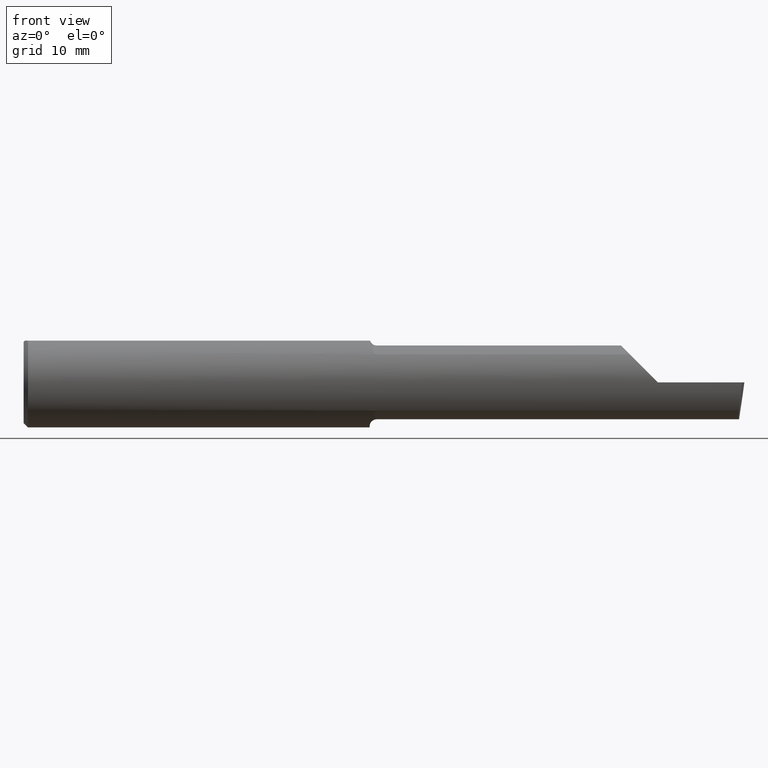
[diagram: clean part render]
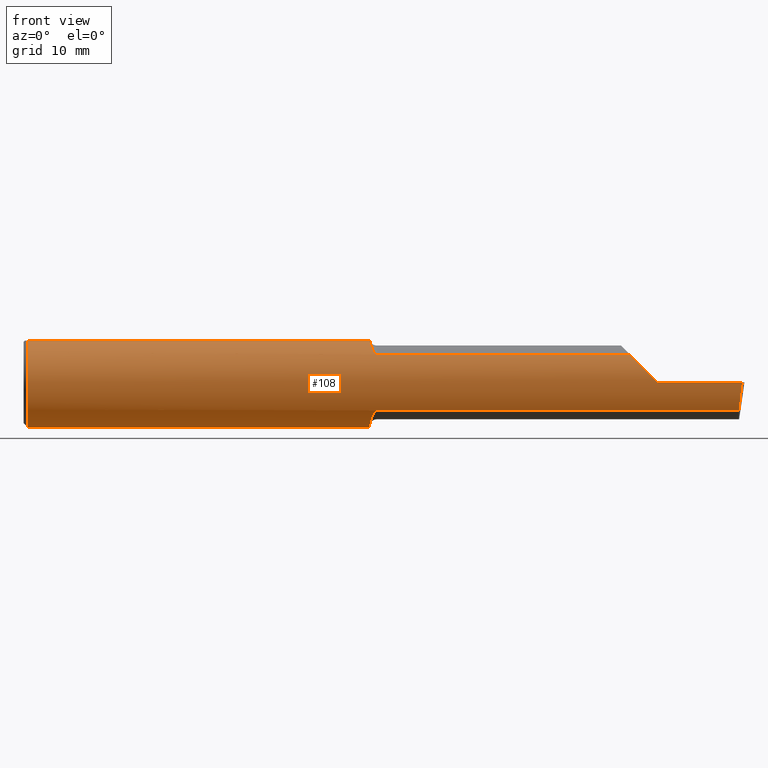
[diagram: same view with one face highlighted and labeled with its STEP entity id]
A machine part, front view. The second image highlights one B-rep face of the part: STEP entity #108.
In plain terms, the highlighted cylindrical surface (partial cylindrical patch) has radius 3.9649 mm, axis along (-1, -0, -0).
Its self-contained STEP definition (entity closure, byte-faithful):
#4 = LINE ( 'NONE', #294, #46 ) ;
#6 = DIRECTION ( 'NONE',  ( 0.000000000000000000, 0.000000000000000000, 1.000000000000000000 ) ) ;
#21 = ORIENTED_EDGE ( 'NONE', *, *, #365, .F. ) ;
#29 = CARTESIAN_POINT ( 'NONE',  ( 2.200000000000000178, -0.1560999999999999888, 9.797174393178826150E-17 ) ) ;
#31 = VERTEX_POINT ( 'NONE', #113 ) ;
#32 = EDGE_CURVE ( 'NONE', #270, #499, #164, .T. ) ;
#33 = CARTESIAN_POINT ( 'NONE',  ( 2.492458454588073469, -0.1561000000000000165, 6.904580041863401145E-17 ) ) ;
#40 = DIRECTION ( 'NONE',  ( 0.000000000000000000, 0.000000000000000000, 1.000000000000000000 ) ) ;
#44 = CARTESIAN_POINT ( 'NONE',  ( 2.481412959734991652, -0.1221769230769231412, -0.09715971113303906170 ) ) ;
#46 = VECTOR ( 'NONE', #627, 39.37007874015748143 ) ;
#50 = DIRECTION ( 'NONE',  ( 0.000000000000000000, 1.000000000000000000, 0.000000000000000000 ) ) ;
#57 = CARTESIAN_POINT ( 'NONE',  ( 1.215102069592271405, -0.1157043737607887368, 0.1048320826875960010 ) ) ;
#62 = EDGE_LOOP ( 'NONE', ( #300, #612, #373, #350, #152, #451, #495, #243, #21, #369, #380, #92 ) ) ;
#77 = CARTESIAN_POINT ( 'NONE',  ( 0.01499999999999999424, 0.000000000000000000, 0.000000000000000000 ) ) ;
#78 = AXIS2_PLACEMENT_3D ( 'NONE', #568, #234, #50 ) ;
#79 = DIRECTION ( 'NONE',  ( -1.000000000000000000, -0.000000000000000000, -0.000000000000000000 ) ) ;
#84 = CARTESIAN_POINT ( 'NONE',  ( 1.201725101710128918, -0.06813315891665873425, -0.1407628789512500866 ) ) ;
#91 = EDGE_CURVE ( 'NONE', #118, #515, #229, .T. ) ;
#92 = ORIENTED_EDGE ( 'NONE', *, *, #557, .F. ) ;
#99 = CARTESIAN_POINT ( 'NONE',  ( 1.225000000000000089, -0.1221769230769235853, 0.09715971113303860374 ) ) ;
#103 = CARTESIAN_POINT ( 'NONE',  ( 0.01499999999999999424, 0.000000000000000000, 0.000000000000000000 ) ) ;
#108 = ADVANCED_FACE ( 'NONE', ( #339 ), #581, .T. ) ;
#109 = CARTESIAN_POINT ( 'NONE',  ( 1.727500000000000036, -0.1221769230769231412, 0.09715971113303906170 ) ) ;
#113 = CARTESIAN_POINT ( 'NONE',  ( 0.01499999999999999424, 0.05756040305626779902, 0.1450999999999999512 ) ) ;
#116 = EDGE_CURVE ( 'NONE', #31, #230, #138, .T. ) ;
#117 = DIRECTION ( 'NONE',  ( -1.000000000000000000, -0.000000000000000000, -0.000000000000000000 ) ) ;
#118 = VERTEX_POINT ( 'NONE', #534 ) ;
#119 = DIRECTION ( 'NONE',  ( 0.000000000000000000, 0.000000000000000000, 1.000000000000000000 ) ) ;
#129 = CARTESIAN_POINT ( 'NONE',  ( 1.213285512035948255, -0.1129012003027997368, -0.1078842078934678095 ) ) ;
#131 = EDGE_CURVE ( 'NONE', #579, #445, #4, .T. ) ;
#135 = DIRECTION ( 'NONE',  ( -1.000000000000000000, -0.000000000000000000, -0.000000000000000000 ) ) ;
#138 = LINE ( 'NONE', #471, #469 ) ;
#147 = CARTESIAN_POINT ( 'NONE',  ( 1.203632829444661656, -0.08367496002137840561, 0.1325537872844357590 ) ) ;
#152 = ORIENTED_EDGE ( 'NONE', *, *, #32, .F. ) ;
#162 = EDGE_CURVE ( 'NONE', #484, #230, #521, .T. ) ;
#163 = AXIS2_PLACEMENT_3D ( 'NONE', #103, #79, #119 ) ;
#164 = LINE ( 'NONE', #109, #291 ) ;
#168 = LINE ( 'NONE', #214, #323 ) ;
#178 = CARTESIAN_POINT ( 'NONE',  ( 1.225000000000000089, -0.1221769230769234466, -0.09715971113303868700 ) ) ;
#203 = CARTESIAN_POINT ( 'NONE',  ( 1.209959943774593816, -0.1060857581125261712, 0.1147206315735843085 ) ) ;
#214 = CARTESIAN_POINT ( 'NONE',  ( 0.000000000000000000, -0.05756040305626774350, 0.1451000000000000068 ) ) ;
#222 = CARTESIAN_POINT ( 'NONE',  ( 2.102840288866959728, -0.1221769230769229747, 0.09715971113303922824 ) ) ;
#223 = DIRECTION ( 'NONE',  ( -1.000000000000000000, -0.000000000000000000, -0.000000000000000000 ) ) ;
#229 = CIRCLE ( 'NONE', #398, 0.1560999999999999888 ) ;
#230 = VERTEX_POINT ( 'NONE', #352 ) ;
#234 = DIRECTION ( 'NONE',  ( 1.000000000000000000, -6.829619984160658046E-18, 0.000000000000000000 ) ) ;
#237 =( BOUNDED_CURVE ( )  B_SPLINE_CURVE ( 3, ( #29, #562, #324, #222 ),
 .UNSPECIFIED., .F., .F. ) 
 B_SPLINE_CURVE_WITH_KNOTS ( ( 4, 4 ),
 ( 4.712388980384689674, 5.384219407203026719 ),
 .UNSPECIFIED. ) 
 CURVE ( )  GEOMETRIC_REPRESENTATION_ITEM ( )  RATIONAL_B_SPLINE_CURVE ( ( 1.000000000000000000, 0.9627393467969931340, 0.9627393467969931340, 1.000000000000000000 ) ) 
 REPRESENTATION_ITEM ( '' )  );
#238 = VERTEX_POINT ( 'NONE', #552 ) ;
#243 = ORIENTED_EDGE ( 'NONE', *, *, #91, .F. ) ;
#255 = CARTESIAN_POINT ( 'NONE',  ( 1.200891796609107276, -0.05756040305628425807, 0.1451000000000000068 ) ) ;
#261 = CARTESIAN_POINT ( 'NONE',  ( 1.201889166232298134, -0.07118859043518395435, 0.1396937701002276544 ) ) ;
#266 = VECTOR ( 'NONE', #549, 39.37007874015748143 ) ;
#270 = VERTEX_POINT ( 'NONE', #99 ) ;
#271 = CARTESIAN_POINT ( 'NONE',  ( 0.01499999999999999424, -0.05756040305626774350, 0.1451000000000000068 ) ) ;
#277 = CARTESIAN_POINT ( 'NONE',  ( 2.488081956929748539, -0.1561000000000000443, -0.03563149886036989789 ) ) ;
#279 = CARTESIAN_POINT ( 'NONE',  ( 1.202778396491914537, -0.07658129683222661410, -0.1363479870192726706 ) ) ;
#281 = CARTESIAN_POINT ( 'NONE',  ( 1.219807963827557851, -0.1204260765459418681, -0.09932603807424099374 ) ) ;
#290 = VERTEX_POINT ( 'NONE', #592 ) ;
#291 = VECTOR ( 'NONE', #503, 39.37007874015748143 ) ;
#294 = CARTESIAN_POINT ( 'NONE',  ( 1.727500000000000036, -0.1221769230769231412, -0.09715971113303906170 ) ) ;
#299 = CARTESIAN_POINT ( 'NONE',  ( 1.223136811009168046, -0.1221769230787635163, 0.09715971113072502385 ) ) ;
#300 = ORIENTED_EDGE ( 'NONE', *, *, #131, .F. ) ;
#310 =( BOUNDED_CURVE ( )  B_SPLINE_CURVE ( 3, ( #617, #525, #277, #33 ),
 .UNSPECIFIED., .F., .F. ) 
 B_SPLINE_CURVE_WITH_KNOTS ( ( 4, 4 ),
 ( 0.6889164556964199049, 1.360746882514756173 ),
 .UNSPECIFIED. ) 
 CURVE ( )  GEOMETRIC_REPRESENTATION_ITEM ( )  RATIONAL_B_SPLINE_CURVE ( ( 1.000000000000000000, 0.9627393467969931340, 0.9627393467969931340, 1.000000000000000000 ) ) 
 REPRESENTATION_ITEM ( '' )  );
#318 = EDGE_CURVE ( 'NONE', #238, #270, #616, .T. ) ;
#323 = VECTOR ( 'NONE', #117, 39.37007874015748143 ) ;
#324 = CARTESIAN_POINT ( 'NONE',  ( 2.130728481662468532, -0.1443546689866652410, 0.06927151833753059096 ) ) ;
#330 = CARTESIAN_POINT ( 'NONE',  ( 1.211718925422504478, -0.1096997042182718263, -0.1111484413982575942 ) ) ;
#338 = CARTESIAN_POINT ( 'NONE',  ( 1.216392177358948112, -0.1172252637552321508, -0.1031022108064115067 ) ) ;
#339 = FACE_OUTER_BOUND ( 'NONE', #62, .T. ) ;
#345 = CARTESIAN_POINT ( 'NONE',  ( 3.121792066109142165E-32, -0.1560999999999999333, 3.155924005931204823E-16 ) ) ;
#349 = CARTESIAN_POINT ( 'NONE',  ( 1.208151388483149402, -0.1007050230054237633, 0.1194860125955492097 ) ) ;
#350 = ORIENTED_EDGE ( 'NONE', *, *, #382, .T. ) ;
#352 = CARTESIAN_POINT ( 'NONE',  ( 1.199999999999999956, 0.05756040305626777820, 0.1450999999999999512 ) ) ;
#356 = EDGE_CURVE ( 'NONE', #393, #290, #508, .T. ) ;
#360 = CARTESIAN_POINT ( 'NONE',  ( 1.217871348603138060, -0.1188261573898909962, 0.1012426231236232682 ) ) ;
#365 = EDGE_CURVE ( 'NONE', #31, #118, #442, .T. ) ;
#369 = ORIENTED_EDGE ( 'NONE', *, *, #116, .T. ) ;
#373 = ORIENTED_EDGE ( 'NONE', *, *, #356, .T. ) ;
#374 = B_SPLINE_CURVE_WITH_KNOTS ( 'NONE', 3,
 ( #178, #387, #531, #576, #281, #383, #338, #129, #330, #533, #537, #279, #84, #582, #425, #479 ),
 .UNSPECIFIED., .F., .F.,
 ( 4, 2, 2, 2, 2, 2, 2, 4 ),
 ( 1.968192473106879591E-07, 9.217006773806703419E-05, 0.0001841433162288233754, 0.0003680898132103294172, 0.0007359828071733378685, 0.001471768795099358566, 0.002207554783025379372, 0.002943340770951400395 ),
 .UNSPECIFIED. ) ;
#375 = CARTESIAN_POINT ( 'NONE',  ( 1.225000000000000089, -0.1221769230769234466, -0.09715971113303868700 ) ) ;
#380 = ORIENTED_EDGE ( 'NONE', *, *, #162, .F. ) ;
#382 = EDGE_CURVE ( 'NONE', #290, #499, #237, .T. ) ;
#383 = CARTESIAN_POINT ( 'NONE',  ( 1.217557852537987095, -0.1186103045499243419, -0.1015006042428808763 ) ) ;
#387 = CARTESIAN_POINT ( 'NONE',  ( 1.223773678789314978, -0.1221769230769234882, -0.09715971113303868700 ) ) ;
#392 = EDGE_CURVE ( 'NONE', #579, #393, #310, .T. ) ;
#393 = VERTEX_POINT ( 'NONE', #572 ) ;
#398 = AXIS2_PLACEMENT_3D ( 'NONE', #77, #223, #6 ) ;
#403 = CARTESIAN_POINT ( 'NONE',  ( 1.221488787992615732, -0.1214795292829874973, 0.09803907726864333205 ) ) ;
#409 = CARTESIAN_POINT ( 'NONE',  ( 1.225000000000000089, -0.1221769230769235853, 0.09715971113303860374 ) ) ;
#425 = CARTESIAN_POINT ( 'NONE',  ( 1.199999999999999734, -0.04153761541479041725, -0.1507758181214154669 ) ) ;
#430 = CARTESIAN_POINT ( 'NONE',  ( 0.000000000000000000, 0.000000000000000000, 0.000000000000000000 ) ) ;
#442 = CIRCLE ( 'NONE', #163, 0.1560999999999999888 ) ;
#444 = DIRECTION ( 'NONE',  ( 1.000000000000000000, 0.000000000000000000, 0.000000000000000000 ) ) ;
#445 = VERTEX_POINT ( 'NONE', #375 ) ;
#451 = ORIENTED_EDGE ( 'NONE', *, *, #318, .F. ) ;
#453 = CARTESIAN_POINT ( 'NONE',  ( 1.218901651199223668, -0.1198118547527632222, 0.1000702561563924509 ) ) ;
#457 = EDGE_CURVE ( 'NONE', #238, #515, #168, .T. ) ;
#469 = VECTOR ( 'NONE', #444, 39.37007874015748143 ) ;
#471 = CARTESIAN_POINT ( 'NONE',  ( 0.000000000000000000, 0.05756040305626779902, 0.1450999999999999512 ) ) ;
#479 = CARTESIAN_POINT ( 'NONE',  ( 1.199999999999999956, -0.03217692307692354009, -0.1527476861405819564 ) ) ;
#484 = VERTEX_POINT ( 'NONE', #614 ) ;
#487 = AXIS2_PLACEMENT_3D ( 'NONE', #430, #135, #40 ) ;
#495 = ORIENTED_EDGE ( 'NONE', *, *, #457, .T. ) ;
#499 = VERTEX_POINT ( 'NONE', #565 ) ;
#503 = DIRECTION ( 'NONE',  ( 1.000000000000000000, -6.829619984160658046E-18, 0.000000000000000000 ) ) ;
#508 = LINE ( 'NONE', #345, #266 ) ;
#515 = VERTEX_POINT ( 'NONE', #271 ) ;
#521 = CIRCLE ( 'NONE', #78, 0.1560999999999999888 ) ;
#525 = CARTESIAN_POINT ( 'NONE',  ( 2.484257628330379664, -0.1443546689866653798, -0.06927151833753047994 ) ) ;
#531 = CARTESIAN_POINT ( 'NONE',  ( 1.222618110610526276, -0.1218695340585153192, -0.09754752781702871745 ) ) ;
#533 = CARTESIAN_POINT ( 'NONE',  ( 1.207643545987174827, -0.09968740490940317112, -0.1204690658458911351 ) ) ;
#534 = CARTESIAN_POINT ( 'NONE',  ( 0.01499999999999999424, 0.000000000000000000, -0.1560999999999999888 ) ) ;
#537 = CARTESIAN_POINT ( 'NONE',  ( 1.205770389155364830, -0.09238103948165252155, -0.1261792856732146528 ) ) ;
#549 = DIRECTION ( 'NONE',  ( -1.000000000000000000, -0.000000000000000000, -0.000000000000000000 ) ) ;
#552 = CARTESIAN_POINT ( 'NONE',  ( 1.200891796609107276, -0.05756040305628425807, 0.1451000000000000068 ) ) ;
#557 = EDGE_CURVE ( 'NONE', #445, #484, #374, .T. ) ;
#562 = CARTESIAN_POINT ( 'NONE',  ( 2.164368501139629863, -0.1560999999999999333, 0.03563149886036996727 ) ) ;
#565 = CARTESIAN_POINT ( 'NONE',  ( 2.102840288866959728, -0.1221769230769229747, 0.09715971113303922824 ) ) ;
#568 = CARTESIAN_POINT ( 'NONE',  ( 1.199999999999999956, 0.000000000000000000, 0.000000000000000000 ) ) ;
#572 = CARTESIAN_POINT ( 'NONE',  ( 2.492458454588073469, -0.1561000000000000165, 6.904580041863401145E-17 ) ) ;
#576 = CARTESIAN_POINT ( 'NONE',  ( 1.220642477297819939, -0.1209866175416258599, -0.09864046781463457758 ) ) ;
#579 = VERTEX_POINT ( 'NONE', #44 ) ;
#581 = CYLINDRICAL_SURFACE ( 'NONE', #487, 0.1560999999999999888 ) ;
#582 = CARTESIAN_POINT ( 'NONE',  ( 1.200339637342208610, -0.05067448177557534739, -0.1479473295851730374 ) ) ;
#592 = CARTESIAN_POINT ( 'NONE',  ( 2.200000000000000178, -0.1560999999999999888, 9.797174393178826150E-17 ) ) ;
#599 = CARTESIAN_POINT ( 'NONE',  ( 1.213693293804758211, -0.1133809524932120061, 0.1073495223905066021 ) ) ;
#612 = ORIENTED_EDGE ( 'NONE', *, *, #392, .T. ) ;
#614 = CARTESIAN_POINT ( 'NONE',  ( 1.199999999999999956, -0.03217692307692354009, -0.1527476861405819564 ) ) ;
#616 = B_SPLINE_CURVE_WITH_KNOTS ( 'NONE', 3,
 ( #255, #261, #147, #349, #203, #599, #57, #360, #453, #403, #299, #409 ),
 .UNSPECIFIED., .F., .F.,
 ( 4, 2, 2, 2, 2, 4 ),
 ( 5.359409875785950247E-07, 0.001104278744107798152, 0.001656150145667907971, 0.001932085846447961254, 0.002070053696837989739, 0.002208021547228018657 ),
 .UNSPECIFIED. ) ;
#617 = CARTESIAN_POINT ( 'NONE',  ( 2.481412959734991652, -0.1221769230769231412, -0.09715971113303906170 ) ) ;
#627 = DIRECTION ( 'NONE',  ( -1.000000000000000000, 6.829619984160658046E-18, -0.000000000000000000 ) ) ;